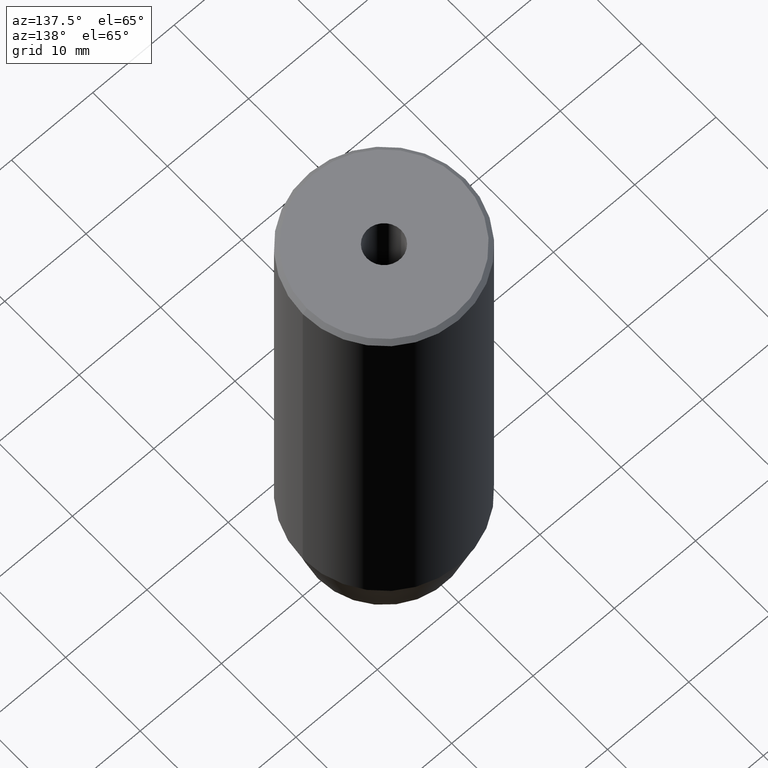
[diagram: clean part render]
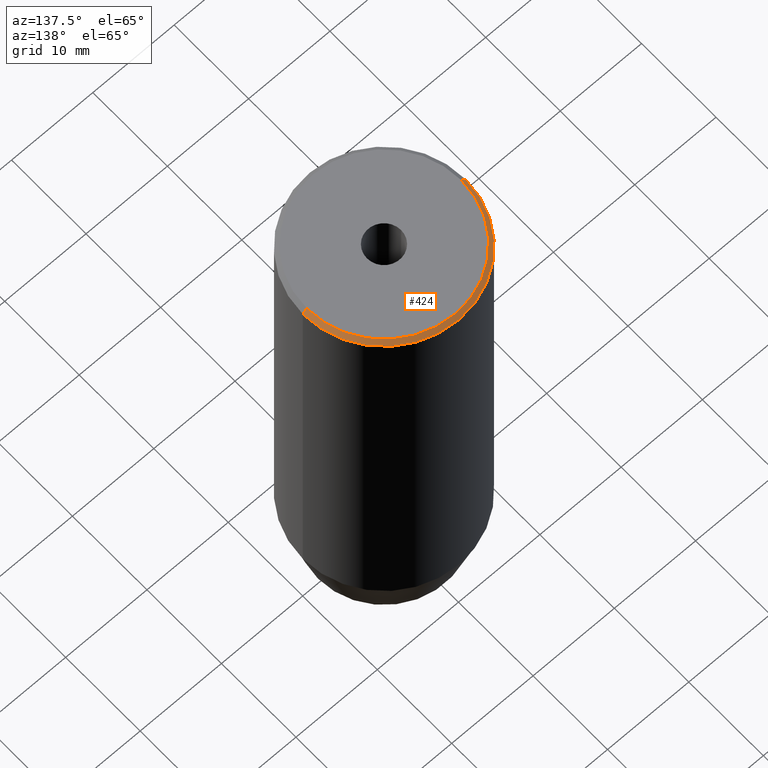
[diagram: same view with one face highlighted and labeled with its STEP entity id]
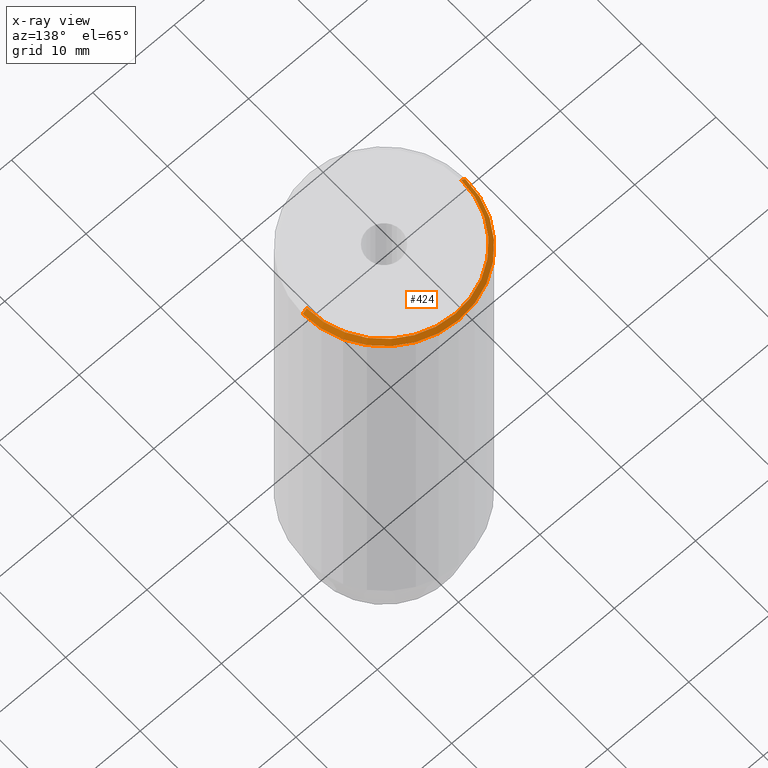
[diagram: x-ray of the same camera — body ghosted, the highlighted face saturated]
A machine part, auxiliary view. The second image highlights one B-rep face of the part: STEP entity #424.
The next image is the same camera in x-ray: the body ghosted, the highlighted face saturated — about 0% of this face is hidden behind the body in this view.
In plain terms, the highlighted conical surface has half-angle 45 deg.
Its self-contained STEP definition (entity closure, byte-faithful):
#7 = CARTESIAN_POINT ( 'NONE',  ( 0.000000000000000000, 0.000000000000000000, -0.5000000000000056621 ) ) ;
#30 = ORIENTED_EDGE ( 'NONE', *, *, #526, .F. ) ;
#37 = ORIENTED_EDGE ( 'NONE', *, *, #587, .F. ) ;
#38 = FACE_OUTER_BOUND ( 'NONE', #84, .T. ) ;
#57 = CARTESIAN_POINT ( 'NONE',  ( -9.500000000000001776, 0.000000000000000000, 0.000000000000000000 ) ) ;
#61 = CIRCLE ( 'NONE', #237, 9.500000000000001776 ) ;
#84 = EDGE_LOOP ( 'NONE', ( #30, #254, #500, #37 ) ) ;
#100 = VECTOR ( 'NONE', #142, 1000.000000000000000 ) ;
#134 = VERTEX_POINT ( 'NONE', #314 ) ;
#136 = DIRECTION ( 'NONE',  ( -1.000000000000000000, 0.000000000000000000, 0.000000000000000000 ) ) ;
#142 = DIRECTION ( 'NONE',  ( -0.7071067811865426878, 0.000000000000000000, -0.7071067811865524577 ) ) ;
#157 = DIRECTION ( 'NONE',  ( -0.000000000000000000, -0.000000000000000000, 1.000000000000000000 ) ) ;
#162 = EDGE_CURVE ( 'NONE', #518, #134, #464, .T. ) ;
#174 = VERTEX_POINT ( 'NONE', #57 ) ;
#183 = DIRECTION ( 'NONE',  ( 0.7071067811865426878, 8.659560562354873694E-17, -0.7071067811865524577 ) ) ;
#202 = CARTESIAN_POINT ( 'NONE',  ( -10.00000000000000000, 1.224646799147353256E-15, -0.5000000000000056621 ) ) ;
#222 = CARTESIAN_POINT ( 'NONE',  ( 0.000000000000000000, 0.000000000000000000, 0.000000000000000000 ) ) ;
#225 = LINE ( 'NONE', #397, #438 ) ;
#227 = AXIS2_PLACEMENT_3D ( 'NONE', #7, #543, #361 ) ;
#228 = CONICAL_SURFACE ( 'NONE', #555, 9.500000000000001776, 0.7853981633974415066 ) ;
#237 = AXIS2_PLACEMENT_3D ( 'NONE', #409, #157, #284 ) ;
#254 = ORIENTED_EDGE ( 'NONE', *, *, #379, .T. ) ;
#284 = DIRECTION ( 'NONE',  ( 1.000000000000000000, 0.000000000000000000, 0.000000000000000000 ) ) ;
#314 = CARTESIAN_POINT ( 'NONE',  ( 10.00000000000000000, 0.000000000000000000, -0.5000000000000056621 ) ) ;
#361 = DIRECTION ( 'NONE',  ( 1.000000000000000000, 0.000000000000000000, 0.000000000000000000 ) ) ;
#379 = EDGE_CURVE ( 'NONE', #451, #134, #225, .T. ) ;
#397 = CARTESIAN_POINT ( 'NONE',  ( 9.500000000000001776, 1.163414459189985682E-15, 0.000000000000000000 ) ) ;
#401 = LINE ( 'NONE', #541, #100 ) ;
#409 = CARTESIAN_POINT ( 'NONE',  ( 0.000000000000000000, 0.000000000000000000, 0.000000000000000000 ) ) ;
#424 = ADVANCED_FACE ( 'NONE', ( #38 ), #228, .T. ) ;
#438 = VECTOR ( 'NONE', #183, 1000.000000000000000 ) ;
#451 = VERTEX_POINT ( 'NONE', #490 ) ;
#464 = CIRCLE ( 'NONE', #227, 10.00000000000000000 ) ;
#490 = CARTESIAN_POINT ( 'NONE',  ( 9.500000000000001776, 1.194030629168669469E-15, 0.000000000000000000 ) ) ;
#500 = ORIENTED_EDGE ( 'NONE', *, *, #162, .F. ) ;
#518 = VERTEX_POINT ( 'NONE', #202 ) ;
#526 = EDGE_CURVE ( 'NONE', #451, #174, #61, .T. ) ;
#541 = CARTESIAN_POINT ( 'NONE',  ( -9.500000000000001776, 0.000000000000000000, 0.000000000000000000 ) ) ;
#543 = DIRECTION ( 'NONE',  ( 0.000000000000000000, 0.000000000000000000, -1.000000000000000000 ) ) ;
#555 = AXIS2_PLACEMENT_3D ( 'NONE', #222, #581, #136 ) ;
#581 = DIRECTION ( 'NONE',  ( 0.000000000000000000, 0.000000000000000000, -1.000000000000000000 ) ) ;
#587 = EDGE_CURVE ( 'NONE', #174, #518, #401, .T. ) ;